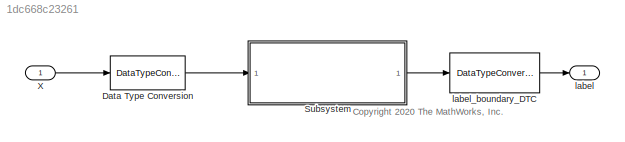
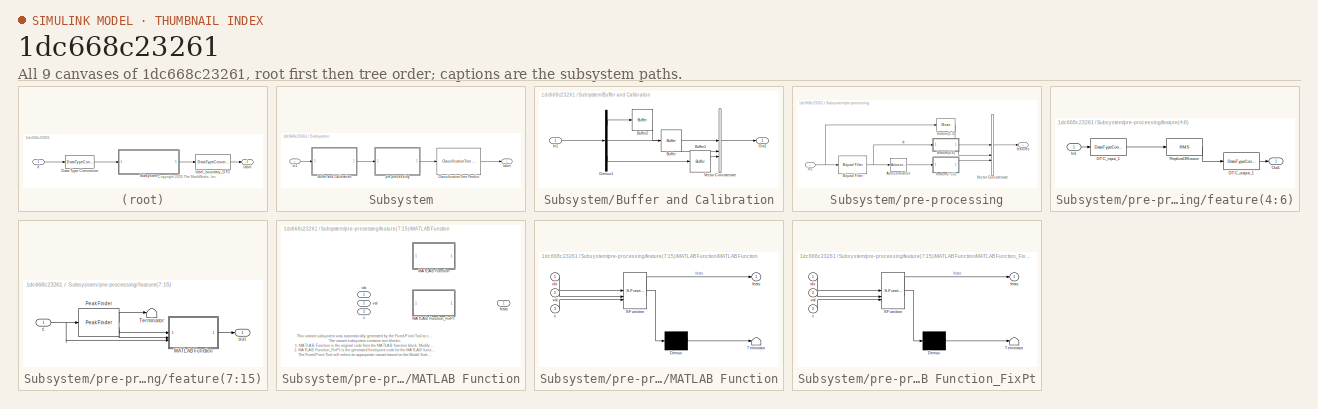
[diagram: thumbnail index - all 9 canvases of the model, root first then tree order]
MODEL slx_1dc668c23261
KIND model
CONFIG AbsTol = auto
CONFIG EnableMultiTasking = off
CONFIG FixedStep = 1
CONFIG MaxStep = auto
CONFIG MinStep = auto
CONFIG PreLoadFcn = % Pre-processing parameters\ns = [1.0000   -1.0000         0    1.0000   -0.9004         0\n    1.0000   -1.9996    1.0000    1.0000   -1.9203    0.9254\n    1.0000   -1.9990    1.0000    1.0000   -1.9762    0.9791\n    1.0000   -1.9986    1.0000    1.0000   -1.9929    0.9953];\n\nfs = 10;\ng = 0.9013;\nfeatsDT = single(1);\nlags = (0:32)';\ntc = (1/fs)*lags;
CONFIG RelTol = 1e-3
CONFIG SampleTimeConstraint = Unconstrained
CONFIG SolverName = FixedStepAuto
CONFIG StartTime = 0.0
CONFIG StopTime = numSteps
BLOCK [DataTypeConversion] Data Type Conversion
  RndMeth = Floor
  SaturateOnIntegerOverflow = off
BLOCK [SubSystem] Subsystem
BLOCK [SubSystem] Subsystem/Buffer and Calibration
BLOCK [Buffer] Subsystem/Buffer and Calibration/Buffer
  N = 32
  OutputFrames = off
  V = 12
BLOCK [Buffer] Subsystem/Buffer and Calibration/Buffer1
  N = 32
  OutputFrames = off
  V = 12
BLOCK [Buffer] Subsystem/Buffer and Calibration/Buffer2
  N = 32
  OutputFrames = off
  V = 12
BLOCK [Demux] Subsystem/Buffer and Calibration/Demux1
  Outputs = 3
BLOCK [Inport] Subsystem/Buffer and Calibration/In1
  OutDataTypeStr = fixdt(1,16,10)
BLOCK [Outport] Subsystem/Buffer and Calibration/Out1
BLOCK [Concatenate] Subsystem/Buffer and Calibration/Vector Concatenate
  ConcatenateDimension = 2
  Mode = Multidimensional array
  NumInputs = 3
BLOCK [Reference] Subsystem/ClassificationTree Predict  REF=statsLibrary/Classification/ClassificationTree Predict
  SourceBlock = statsLibrary/Classification/ClassificationTree Predict
  SourceType = ClassificationTree Predict
BLOCK [Inport] Subsystem/In1
  OutDataTypeStr = fixdt(1,16,10)
BLOCK [Outport] Subsystem/label
BLOCK [SubSystem] Subsystem/pre-processing
BLOCK [Reference] Subsystem/pre-processing/Autocorrelation  REF=dspstat3/Autocorrelation
  SourceBlock = dspstat3/Autocorrelation
  SourceType = Autocorrelation
BLOCK [Reference] Subsystem/pre-processing/Biquad Filter  REF=dsparch4/Biquad Filter
  SourceBlock = dsparch4/Biquad Filter
  SourceType = Biquad Filter
  UserDataPersistent = on
BLOCK [Inport] Subsystem/pre-processing/In1
  OutDataTypeStr = fixdt(1,16,10)
BLOCK [Concatenate] Subsystem/pre-processing/Vector Concatenate
  NumInputs = 3
BLOCK [Reference] Subsystem/pre-processing/feature(1:3)  REF=dspstat3/Mean
  SourceBlock = dspstat3/Mean
  SourceType = Mean
  UserDataPersistent = on
BLOCK [SubSystem] Subsystem/pre-processing/feature(4:6)
  Tag = DecoupledSystem
BLOCK [DataTypeConversion] Subsystem/pre-processing/feature(4:6)/DTC_input_1
  LockScale = on
  OutDataTypeStr = fixdt('double')
  RndMeth = Nearest
  SaturateOnIntegerOverflow = off
BLOCK [DataTypeConversion] Subsystem/pre-processing/feature(4:6)/DTC_output_1
  OutDataTypeStr = fixdt(1,16,10)
  RndMeth = Floor
  SaturateOnIntegerOverflow = off
BLOCK [Inport] Subsystem/pre-processing/feature(4:6)/In1
  LockScale = on
BLOCK [Outport] Subsystem/pre-processing/feature(4:6)/Out1
  LockScale = on
BLOCK [Reference] Subsystem/pre-processing/feature(4:6)/ReplicaOfSource  REF=dspstat3/RMS
  SourceBlock = dspstat3/RMS
  SourceType = RMS
  UserDataPersistent = on
BLOCK [SubSystem] Subsystem/pre-processing/feature(7:15)
BLOCK [SubSystem] Subsystem/pre-processing/feature(7:15)/MATLAB Function
  LabelModeActiveChoice = (default)
  TreatAsAtomicUnit = on
  Variant = on
  VariantControl = Choice
  VariantControlMode = label
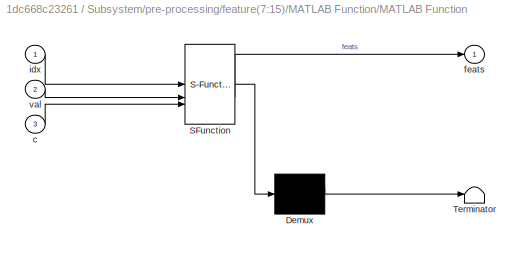
BLOCK [SubSystem] Subsystem/pre-processing/feature(7:15)/MATLAB Function/MATLAB Function
  ErrorFcn = Stateflow.Translate.translate
  PermitHierarchicalResolution = ExplicitOnly
  SFBlockType = MATLAB Function
  TreatAsAtomicUnit = on
  VariantControl = false()
BLOCK [Demux] Subsystem/pre-processing/feature(7:15)/MATLAB Function/MATLAB Function/ Demux 
  Outputs = 1
BLOCK [S-Function] Subsystem/pre-processing/feature(7:15)/MATLAB Function/MATLAB Function/ SFunction 
  EnableBusSupport = off
  FunctionName = sf_sfun
  Parameters = tc
  PortCounts = [3 2]
  SFcnIsStateOwnerBlock = off
  SFunctionDeploymentMode = off
  Tag = Stateflow S-Function 2
BLOCK [Terminator] Subsystem/pre-processing/feature(7:15)/MATLAB Function/MATLAB Function/ Terminator 
BLOCK [Inport] Subsystem/pre-processing/feature(7:15)/MATLAB Function/MATLAB Function/c
  Port = 3
BLOCK [Outport] Subsystem/pre-processing/feature(7:15)/MATLAB Function/MATLAB Function/feats
BLOCK [Inport] Subsystem/pre-processing/feature(7:15)/MATLAB Function/MATLAB Function/idx
BLOCK [Inport] Subsystem/pre-processing/feature(7:15)/MATLAB Function/MATLAB Function/val
  Port = 2
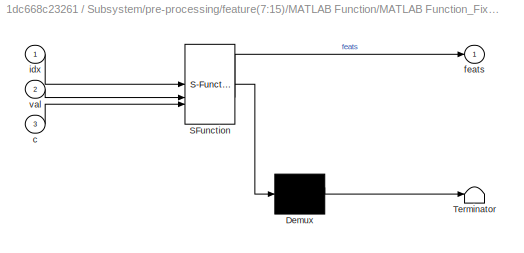
BLOCK [SubSystem] Subsystem/pre-processing/feature(7:15)/MATLAB Function/MATLAB Function_FixPt
  ErrorFcn = Stateflow.Translate.translate
  Permissions = ReadOnly
  PermitHierarchicalResolution = ExplicitOnly
  SFBlockType = MATLAB Function
  TreatAsAtomicUnit = on
  VariantControl = (default)
BLOCK [Demux] Subsystem/pre-processing/feature(7:15)/MATLAB Function/MATLAB Function_FixPt/ Demux 
  Outputs = 1
BLOCK [S-Function] Subsystem/pre-processing/feature(7:15)/MATLAB Function/MATLAB Function_FixPt/ SFunction 
  EnableBusSupport = off
  FunctionName = sf_sfun
  Parameters = tc
  PortCounts = [3 2]
  SFcnIsStateOwnerBlock = off
  SFunctionDeploymentMode = off
  Tag = Stateflow S-Function 1
BLOCK [Terminator] Subsystem/pre-processing/feature(7:15)/MATLAB Function/MATLAB Function_FixPt/ Terminator 
BLOCK [Inport] Subsystem/pre-processing/feature(7:15)/MATLAB Function/MATLAB Function_FixPt/c
  Port = 3
BLOCK [Outport] Subsystem/pre-processing/feature(7:15)/MATLAB Function/MATLAB Function_FixPt/feats
BLOCK [Inport] Subsystem/pre-processing/feature(7:15)/MATLAB Function/MATLAB Function_FixPt/idx
BLOCK [Inport] Subsystem/pre-processing/feature(7:15)/MATLAB Function/MATLAB Function_FixPt/val
  Port = 2
BLOCK [Inport] Subsystem/pre-processing/feature(7:15)/MATLAB Function/c
  Port = 3
BLOCK [Outport] Subsystem/pre-processing/feature(7:15)/MATLAB Function/feats
BLOCK [Inport] Subsystem/pre-processing/feature(7:15)/MATLAB Function/idx
BLOCK [Inport] Subsystem/pre-processing/feature(7:15)/MATLAB Function/val
  Port = 2
BLOCK [Reference] Subsystem/pre-processing/feature(7:15)/Peak Finder  REF=dspsigops/Peak Finder
  SourceBlock = dspsigops/Peak Finder
  SourceType = Peak Finder
BLOCK [Terminator] Subsystem/pre-processing/feature(7:15)/Terminator
BLOCK [Inport] Subsystem/pre-processing/feature(7:15)/c
  OutDataTypeStr = fixdt(1,16,10)
BLOCK [Outport] Subsystem/pre-processing/feature(7:15)/out
BLOCK [Outport] Subsystem/pre-processing/features
BLOCK [Inport] X
  OutDataTypeStr = double
  PortDimensions = [1,3]
  SampleTime = 1
BLOCK [Outport] label
BLOCK [DataTypeConversion] label_boundary_DTC
ANNOTATION (root): <copyright redacted>
ANNOTATION Subsystem/pre-processing/feature(7:15)/MATLAB Function: This variant subsystem was automatically generated by the Fixed-Point Tool to convert a MATLAB function block to fixed-point. The variant subsystem contains two blocks: 1. MATLAB Function is the original code from the MATLAB function block. Modify this block to update your code or resolve errors. 2. MATLAB Function_FixPt is the generated fixed-point code for the MATLAB function block. Any modifica...<+162ch>
LINE Data Type Conversion:1 -> Subsystem:1
LINE Subsystem/Buffer and Calibration/Buffer1:1 -> Subsystem/Buffer and Calibration/Vector Concatenate:3
LINE Subsystem/Buffer and Calibration/Buffer2:1 -> Subsystem/Buffer and Calibration/Vector Concatenate:1
LINE Subsystem/Buffer and Calibration/Buffer:1 -> Subsystem/Buffer and Calibration/Vector Concatenate:2
LINE Subsystem/Buffer and Calibration/Demux1:1 -> Subsystem/Buffer and Calibration/Buffer2:1
LINE Subsystem/Buffer and Calibration/Demux1:2 -> Subsystem/Buffer and Calibration/Buffer:1
LINE Subsystem/Buffer and Calibration/Demux1:3 -> Subsystem/Buffer and Calibration/Buffer1:1
LINE Subsystem/Buffer and Calibration/In1:1 -> Subsystem/Buffer and Calibration/Demux1:1
LINE Subsystem/Buffer and Calibration/Vector Concatenate:1 -> Subsystem/Buffer and Calibration/Out1:1
LINE Subsystem/Buffer and Calibration:1 -> Subsystem/pre-processing:1
LINE Subsystem/ClassificationTree Predict:1 -> Subsystem/label:1
LINE Subsystem/In1:1 -> Subsystem/Buffer and Calibration:1
LINE Subsystem/pre-processing/Autocorrelation:1 -> Subsystem/pre-processing/feature(7:15):1
NET Subsystem/pre-processing/Biquad Filter:1 -> Subsystem/pre-processing/Autocorrelation:1, Subsystem/pre-processing/feature(4:6):1
NET Subsystem/pre-processing/In1:1 -> Subsystem/pre-processing/Biquad Filter:1, Subsystem/pre-processing/feature(1:3):1
LINE Subsystem/pre-processing/Vector Concatenate:1 -> Subsystem/pre-processing/features:1
LINE Subsystem/pre-processing/feature(1:3):1 -> Subsystem/pre-processing/Vector Concatenate:1
LINE Subsystem/pre-processing/feature(4:6)/DTC_input_1:1 -> Subsystem/pre-processing/feature(4:6)/ReplicaOfSource:1
LINE Subsystem/pre-processing/feature(4:6)/DTC_output_1:1 -> Subsystem/pre-processing/feature(4:6)/Out1:1
LINE Subsystem/pre-processing/feature(4:6)/In1:1 -> Subsystem/pre-processing/feature(4:6)/DTC_input_1:1
LINE Subsystem/pre-processing/feature(4:6)/ReplicaOfSource:1 -> Subsystem/pre-processing/feature(4:6)/DTC_output_1:1
LINE Subsystem/pre-processing/feature(4:6):1 -> Subsystem/pre-processing/Vector Concatenate:2
LINE Subsystem/pre-processing/feature(7:15)/MATLAB Function:1 -> Subsystem/pre-processing/feature(7:15)/out:1
LINE Subsystem/pre-processing/feature(7:15)/Peak Finder:1 -> Subsystem/pre-processing/feature(7:15)/Terminator:1
LINE Subsystem/pre-processing/feature(7:15)/Peak Finder:2 -> Subsystem/pre-processing/feature(7:15)/MATLAB Function:1
LINE Subsystem/pre-processing/feature(7:15)/Peak Finder:3 -> Subsystem/pre-processing/feature(7:15)/MATLAB Function:2
NET Subsystem/pre-processing/feature(7:15)/c:1 -> Subsystem/pre-processing/feature(7:15)/MATLAB Function:3, Subsystem/pre-processing/feature(7:15)/Peak Finder:1
LINE Subsystem/pre-processing/feature(7:15):1 -> Subsystem/pre-processing/Vector Concatenate:3
LINE Subsystem/pre-processing:1 -> Subsystem/ClassificationTree Predict:1
LINE Subsystem:1 -> label_boundary_DTC:1
LINE X:1 -> Data Type Conversion:1
LINE label_boundary_DTC:1 -> label:1
note: NET lines group one-source signal fan-out (src -> all destinations, sorted); 1:1 wires keep LINE
CHART Subsystem/pre-processing/feature(7:15)/MATLAB Function/MATLAB Function_FixPt states=1 transitions=1
  STATE_LABEL 'eML_blk_kernel()'
  STATE_LABEL "SCRIPT:\n%auto-generated\n%#codegen\nfunction feats = fcn_fixpt(idx,val,c,tc)\nfm = get_fimath();\nc = fi(c, 1, 16, 10, fm);\nidx = fi(idx, 0, 32, 27, fm);\ntc = fi(tc, 0, 16, 14, fm);\nval = fi(val, 1, 16, 10, fm);\n\nfeats = fi(zeros(9,1,'like',val), 1, 16, 10, fm);\nfor k = 1:3\n%     [pks,locs] = findpeaks([0;c(:,k)],...\n%         'minpeakprominence',minprom,...\n%         'minpeakdistance',minpkdist);\n   ...<+692ch>"
CHART Subsystem/pre-processing/feature(7:15)/MATLAB Function/MATLAB Function states=1 transitions=1
  STATE_LABEL 'eML_blk_kernel()'
  STATE_LABEL "SCRIPT:\nfunction feats = fcn(idx,val,c,tc)\nfeats = zeros(9,1,'like',val);\nfor k = 1:3\n%     [pks,locs] = findpeaks([0;c(:,k)],...\n%         'minpeakprominence',minprom,...\n%         'minpeakdistance',minpkdist);\n    nzInds = idx(:,k)>0;\n    locs = idx(nzInds,k);\n    pks = val(nzInds,k);\n    \n    tcl = tc(locs);\n\n    % Feature 1 - peak height at 0\n    feats(3*(k-1)+1) = c(1,k);\n    % Features 2 and...<+171ch>"
CHART  states=0 transitions=0
CHART  states=0 transitions=0
